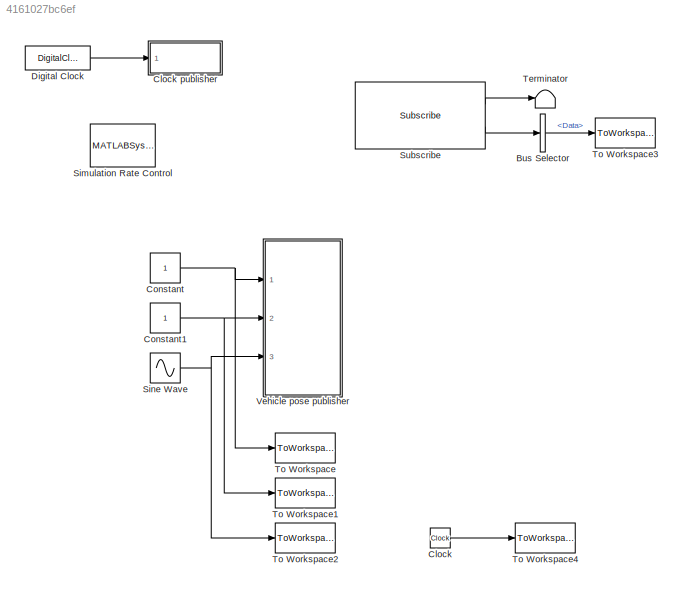
MODEL slx_4161027bc6ef
KIND model
CONFIG AbsTol = auto
CONFIG EnableMultiTasking = on
CONFIG FixedStep = 1e-4
CONFIG MaxStep = auto
CONFIG MinStep = auto
CONFIG RelTol = 1e-3
CONFIG SampleTimeConstraint = Unconstrained
CONFIG Solver = ode5
CONFIG SolverName = ode5
CONFIG StartTime = 0.0
CONFIG StopTime = SET_t_end
BLOCK [BusSelector] Bus Selector
  OutputAsBus = off
  OutputSignals = Data
  Ports = [1, 1]
BLOCK [Clock] Clock
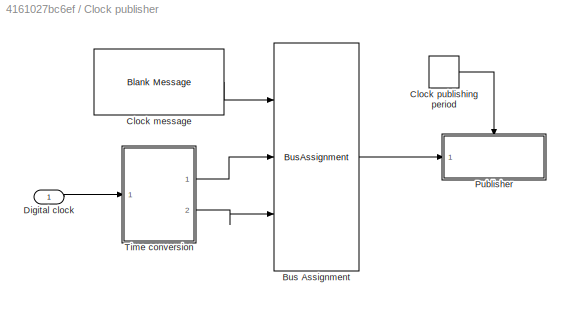
BLOCK [SubSystem] Clock publisher
  Ports = [1]
  RequestExecContextInheritance = off
  Variant = off
BLOCK [BusAssignment] Clock publisher/Bus Assignment
  AssignedSignals = Clock_.Sec,Clock_.Nsec
  DialogController = Simulink.DDGSource_BusAssignment
  Ports = [3, 1]
BLOCK [Reference] Clock publisher/Clock message  REF=robotlib/Blank Message
  Ports = [0, 1]
  SourceBlock = robotlib/Blank Message
  SourceLibraryInfo = This block requires Robotics System Toolbox
  SourceProductBaseCode = RO
  SourceProductName = Robotics System Toolbox
  SourceType = ROS Blank Message
BLOCK [DiscretePulseGenerator] Clock publisher/Clock publishing period
  Period = ROS_clockPublishingPeriod
  Ports = [0, 1]
  PulseType = Time based
  PulseWidth = 50
BLOCK [Inport] Clock publisher/Digital clock
  IconDisplay = Port number
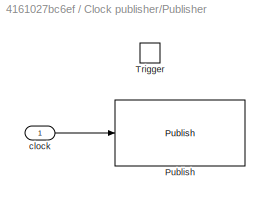
BLOCK [SubSystem] Clock publisher/Publisher
  Ports = [1, 0, 0, 1]
  RequestExecContextInheritance = off
  TreatAsAtomicUnit = on
  Variant = off
BLOCK [Reference] Clock publisher/Publisher/Publish  REF=robotlib/Publish
  Ports = [1]
  SourceBlock = robotlib/Publish
  SourceLibraryInfo = This block requires Robotics System Toolbox
  SourceProductBaseCode = RO
  SourceProductName = Robotics System Toolbox
  SourceType = ROS Publish
BLOCK [TriggerPort] Clock publisher/Publisher/Trigger
  Ports = []
  StatesWhenEnabling = held
  VariantControl = Variant
BLOCK [Inport] Clock publisher/Publisher/clock
  IconDisplay = Port number
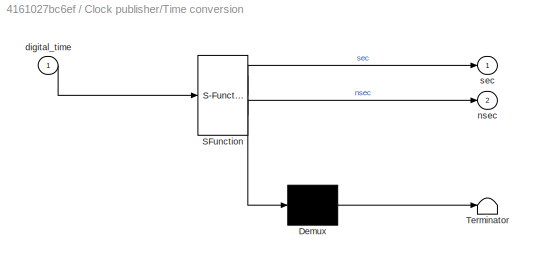
BLOCK [SubSystem] Clock publisher/Time conversion
  ErrorFcn = Stateflow.Translate.translate
  PermitHierarchicalResolution = ExplicitOnly
  Ports = [1, 2]
  RequestExecContextInheritance = off
  SFBlockType = MATLAB Function
  TreatAsAtomicUnit = on
  Variant = off
BLOCK [Demux] Clock publisher/Time conversion/ Demux 
  Outputs = 1
  Ports = [1, 1]
BLOCK [S-Function] Clock publisher/Time conversion/ SFunction 
  EnableBusSupport = on
  FunctionName = sf_sfun
  PortCounts = [1 3]
  Ports = [1, 3]
  SFcnIsStateOwnerBlock = off
  SFunctionDeploymentMode = off
  Tag = Stateflow S-Function test_beta_estimator 2
BLOCK [Terminator] Clock publisher/Time conversion/ Terminator 
BLOCK [Inport] Clock publisher/Time conversion/digital_time
  IconDisplay = Port number
BLOCK [Outport] Clock publisher/Time conversion/nsec
  IconDisplay = Port number
  Port = 2
BLOCK [Outport] Clock publisher/Time conversion/sec
  IconDisplay = Port number
BLOCK [Constant] Constant
BLOCK [Constant] Constant1
BLOCK [DigitalClock] Digital Clock
  SampleTime = SIM_Tsolver
BLOCK [MATLABSystem] Simulation Rate Control
  MaskDisplay = disp('Rate Control');
  MaskType = ExampleHelperSimulationRateControl
  Ports = []
  SampleTime = SIM_Tsolver
  System = ExampleHelperSimulationRateControl
BLOCK [Sin] Sine Wave
  Ports = [0, 1]
  SampleTime = 0
BLOCK [Reference] Subscribe  REF=robotlib/Subscribe
  Ports = [0, 2]
  SourceBlock = robotlib/Subscribe
  SourceLibraryInfo = This block requires Robotics System Toolbox
  SourceProductBaseCode = RO
  SourceProductName = Robotics System Toolbox
  SourceType = ROS Subscribe
BLOCK [Terminator] Terminator
BLOCK [ToWorkspace] To Workspace
  FixptAsFi = on
  MaxDataPoints = inf
  Ports = [1]
  SampleTime = -1
  Save2DSignal = 2-D array (concatenate along first dimension)
  VariableName = x
BLOCK [ToWorkspace] To Workspace1
  FixptAsFi = on
  MaxDataPoints = inf
  Ports = [1]
  SampleTime = -1
  Save2DSignal = 2-D array (concatenate along first dimension)
  VariableName = y
BLOCK [ToWorkspace] To Workspace2
  FixptAsFi = on
  MaxDataPoints = inf
  Ports = [1]
  SampleTime = -1
  Save2DSignal = 2-D array (concatenate along first dimension)
  VariableName = yaw
BLOCK [ToWorkspace] To Workspace3
  FixptAsFi = on
  MaxDataPoints = inf
  Ports = [1]
  SampleTime = -1
  Save2DSignal = 2-D array (concatenate along first dimension)
  VariableName = sideSlip
BLOCK [ToWorkspace] To Workspace4
  FixptAsFi = on
  MaxDataPoints = inf
  Ports = [1]
  SampleTime = -1
  Save2DSignal = 2-D array (concatenate along first dimension)
  VariableName = t
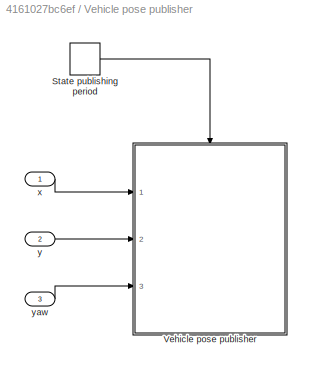
BLOCK [SubSystem] Vehicle pose publisher
  Ports = [3]
  RequestExecContextInheritance = off
  Variant = off
BLOCK [DiscretePulseGenerator] Vehicle pose publisher/State publishing period
  Period = ROS_measurementPublishingPeriod
  Ports = [0, 1]
  PulseType = Time based
  PulseWidth = 50
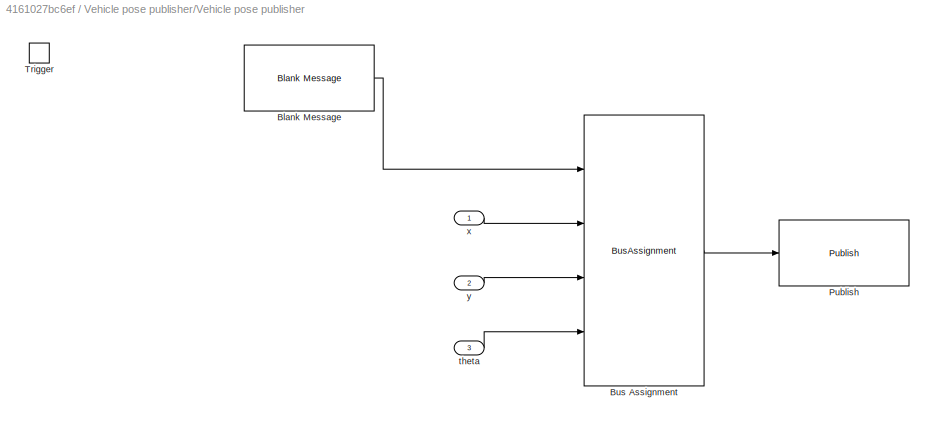
BLOCK [SubSystem] Vehicle pose publisher/Vehicle pose publisher
  Ports = [3, 0, 0, 1]
  RequestExecContextInheritance = off
  TreatAsAtomicUnit = on
  Variant = off
BLOCK [Reference] Vehicle pose publisher/Vehicle pose publisher/Blank Message  REF=robotlib/Blank Message
  Ports = [0, 1]
  SourceBlock = robotlib/Blank Message
  SourceLibraryInfo = This block requires Robotics System Toolbox
  SourceProductBaseCode = RO
  SourceProductName = Robotics System Toolbox
  SourceType = ROS Blank Message
BLOCK [BusAssignment] Vehicle pose publisher/Vehicle pose publisher/Bus Assignment
  AssignedSignals = X,Y,Theta
  DialogController = Simulink.DDGSource_BusAssignment
  Ports = [4, 1]
BLOCK [Reference] Vehicle pose publisher/Vehicle pose publisher/Publish  REF=robotlib/Publish
  Ports = [1]
  SourceBlock = robotlib/Publish
  SourceLibraryInfo = This block requires Robotics System Toolbox
  SourceProductBaseCode = RO
  SourceProductName = Robotics System Toolbox
  SourceType = ROS Publish
BLOCK [TriggerPort] Vehicle pose publisher/Vehicle pose publisher/Trigger
  Ports = []
  StatesWhenEnabling = held
  VariantControl = Variant
BLOCK [Inport] Vehicle pose publisher/Vehicle pose publisher/theta
  IconDisplay = Port number
  Port = 3
BLOCK [Inport] Vehicle pose publisher/Vehicle pose publisher/x
  IconDisplay = Port number
BLOCK [Inport] Vehicle pose publisher/Vehicle pose publisher/y
  IconDisplay = Port number
  Port = 2
BLOCK [Inport] Vehicle pose publisher/x
  IconDisplay = Port number
BLOCK [Inport] Vehicle pose publisher/y
  IconDisplay = Port number
  Port = 2
BLOCK [Inport] Vehicle pose publisher/yaw
  IconDisplay = Port number
  Port = 3
LINE Bus Selector:1 -> To Workspace3:1
LINE Clock publisher/Bus Assignment:1 -> Clock publisher/Publisher:1
LINE Clock publisher/Clock message:1 -> Clock publisher/Bus Assignment:1
LINE Clock publisher/Clock publishing period:1 -> Clock publisher/Publisher:trigger
LINE Clock publisher/Digital clock:1 -> Clock publisher/Time conversion:1
LINE Clock publisher/Publisher/clock:1 -> Clock publisher/Publisher/Publish:1
LINE Clock publisher/Time conversion:1 -> Clock publisher/Bus Assignment:2
LINE Clock publisher/Time conversion:2 -> Clock publisher/Bus Assignment:3
LINE Clock:1 -> To Workspace4:1
NET Constant1:1 -> To Workspace1:1, Vehicle pose publisher:2
NET Constant:1 -> To Workspace:1, Vehicle pose publisher:1
LINE Digital Clock:1 -> Clock publisher:1
NET Sine Wave:1 -> To Workspace2:1, Vehicle pose publisher:3
LINE Subscribe:1 -> Terminator:1
LINE Subscribe:2 -> Bus Selector:1
LINE Vehicle pose publisher/State publishing period:1 -> Vehicle pose publisher/Vehicle pose publisher:trigger
LINE Vehicle pose publisher/Vehicle pose publisher/Blank Message:1 -> Vehicle pose publisher/Vehicle pose publisher/Bus Assignment:1
LINE Vehicle pose publisher/Vehicle pose publisher/Bus Assignment:1 -> Vehicle pose publisher/Vehicle pose publisher/Publish:1
LINE Vehicle pose publisher/Vehicle pose publisher/theta:1 -> Vehicle pose publisher/Vehicle pose publisher/Bus Assignment:4
LINE Vehicle pose publisher/Vehicle pose publisher/x:1 -> Vehicle pose publisher/Vehicle pose publisher/Bus Assignment:2
LINE Vehicle pose publisher/Vehicle pose publisher/y:1 -> Vehicle pose publisher/Vehicle pose publisher/Bus Assignment:3
LINE Vehicle pose publisher/x:1 -> Vehicle pose publisher/Vehicle pose publisher:1
LINE Vehicle pose publisher/y:1 -> Vehicle pose publisher/Vehicle pose publisher:2
LINE Vehicle pose publisher/yaw:1 -> Vehicle pose publisher/Vehicle pose publisher:3
note: NET lines group one-source signal fan-out (src -> all destinations, sorted); 1:1 wires keep LINE
CHART Clock publisher/Time conversion states=1 transitions=1
  STATE_LABEL 'eML_blk_kernel()'
  STATE_LABEL 'SCRIPT:\nfunction [sec,nsec] = time2rosclock(digital_time)\n\nsec = floor(digital_time);\nnsec = round((digital_time-sec)*1.0e+9);\n\n'
